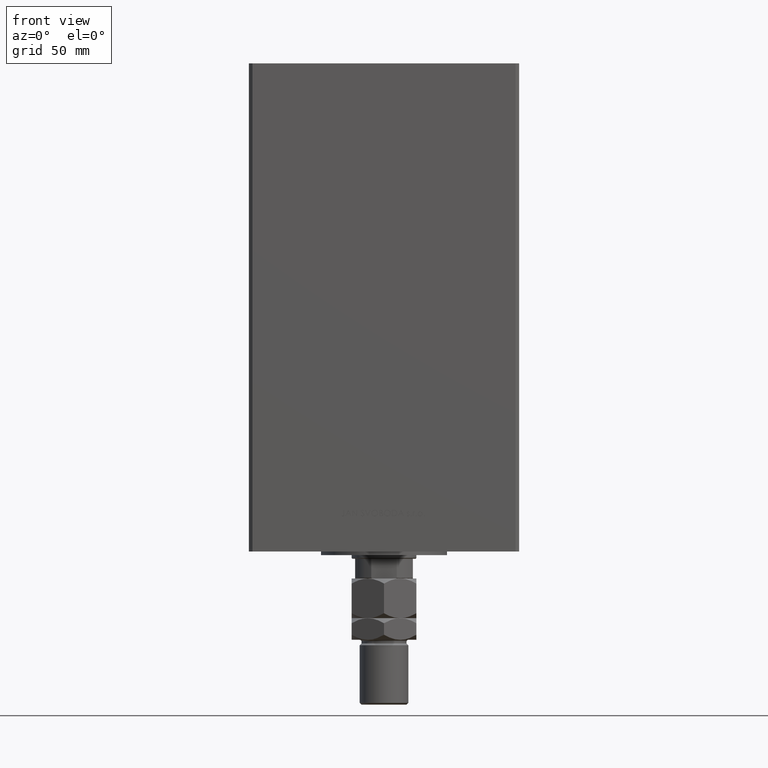
[diagram: clean part render]
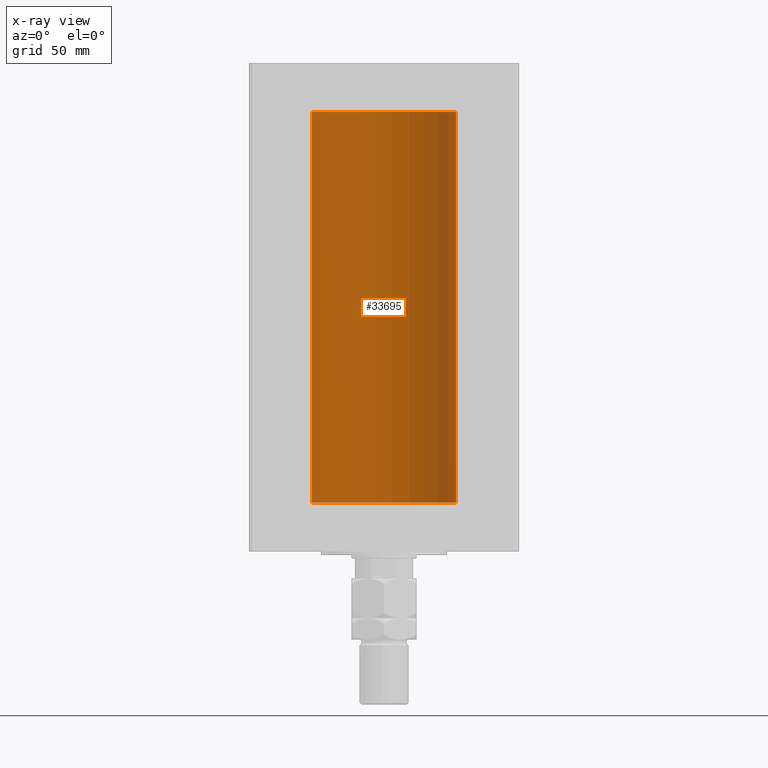
[diagram: x-ray — body ghosted, one internal face saturated and labeled with its STEP entity id]
A machine part, front view, then the same camera in x-ray: the body is ghosted and one INTERNAL B-rep face — a face not visible from any outside direction — is saturated and labeled: STEP entity #33695.
In plain terms, the highlighted cylindrical surface (partial cylindrical patch) has radius 40 mm, axis along (-0, -0, -1).
Its self-contained STEP definition (entity closure, byte-faithful):
#3568 = DIRECTION ( 'NONE',  ( 1.000000000000000000, 0.000000000000000000, 0.000000000000000000 ) ) ;
#4313 = LINE ( 'NONE', #19157, #17739 ) ;
#5011 = CYLINDRICAL_SURFACE ( 'NONE', #24054, 40.00000000000000000 ) ;
#8219 = DIRECTION ( 'NONE',  ( -0.000000000000000000, 0.000000000000000000, 1.000000000000000000 ) ) ;
#8848 = DIRECTION ( 'NONE',  ( -1.000000000000000000, 0.000000000000000000, 0.000000000000000000 ) ) ;
#9076 = CARTESIAN_POINT ( 'NONE',  ( -40.00000000000000000, 0.000000000000000000, 217.0000000000000000 ) ) ;
#11987 = ORIENTED_EDGE ( 'NONE', *, *, #44325, .T. ) ;
#12040 = EDGE_CURVE ( 'NONE', #14532, #21724, #40379, .T. ) ;
#14532 = VERTEX_POINT ( 'NONE', #32730 ) ;
#15245 = DIRECTION ( 'NONE',  ( -0.000000000000000000, -0.000000000000000000, -1.000000000000000000 ) ) ;
#15389 = DIRECTION ( 'NONE',  ( 1.000000000000000000, 0.000000000000000000, 0.000000000000000000 ) ) ;
#15589 = DIRECTION ( 'NONE',  ( -0.000000000000000000, 0.000000000000000000, 1.000000000000000000 ) ) ;
#17632 = ORIENTED_EDGE ( 'NONE', *, *, #31704, .T. ) ;
#17739 = VECTOR ( 'NONE', #34744, 1000.000000000000000 ) ;
#18556 = CIRCLE ( 'NONE', #25944, 40.00000000000000000 ) ;
#19157 = CARTESIAN_POINT ( 'NONE',  ( 40.00000000000000000, 4.898587196589413026E-15, 217.0000000000000000 ) ) ;
#21217 = CARTESIAN_POINT ( 'NONE',  ( -40.00000000000000000, 0.000000000000000000, 0.000000000000000000 ) ) ;
#21724 = VERTEX_POINT ( 'NONE', #21217 ) ;
#21933 = LINE ( 'NONE', #42376, #24778 ) ;
#22433 = AXIS2_PLACEMENT_3D ( 'NONE', #39385, #15589, #3568 ) ;
#24054 = AXIS2_PLACEMENT_3D ( 'NONE', #48745, #40831, #8848 ) ;
#24778 = VECTOR ( 'NONE', #15245, 1000.000000000000000 ) ;
#25944 = AXIS2_PLACEMENT_3D ( 'NONE', #41764, #8219, #15389 ) ;
#29948 = VERTEX_POINT ( 'NONE', #9076 ) ;
#31704 = EDGE_CURVE ( 'NONE', #29948, #21724, #21933, .T. ) ;
#32730 = CARTESIAN_POINT ( 'NONE',  ( 40.00000000000000000, 4.898587196589413026E-15, 0.000000000000000000 ) ) ;
#33126 = FACE_OUTER_BOUND ( 'NONE', #33766, .T. ) ;
#33695 = ADVANCED_FACE ( 'NONE', ( #33126 ), #5011, .F. ) ;
#33766 = EDGE_LOOP ( 'NONE', ( #42653, #11987, #17632, #43207 ) ) ;
#34744 = DIRECTION ( 'NONE',  ( -0.000000000000000000, -0.000000000000000000, -1.000000000000000000 ) ) ;
#36081 = VERTEX_POINT ( 'NONE', #43726 ) ;
#39385 = CARTESIAN_POINT ( 'NONE',  ( 0.000000000000000000, 0.000000000000000000, 0.000000000000000000 ) ) ;
#40299 = EDGE_CURVE ( 'NONE', #36081, #14532, #4313, .T. ) ;
#40379 = CIRCLE ( 'NONE', #22433, 40.00000000000000000 ) ;
#40831 = DIRECTION ( 'NONE',  ( -0.000000000000000000, -0.000000000000000000, -1.000000000000000000 ) ) ;
#41764 = CARTESIAN_POINT ( 'NONE',  ( 0.000000000000000000, 0.000000000000000000, 217.0000000000000000 ) ) ;
#42376 = CARTESIAN_POINT ( 'NONE',  ( -40.00000000000000000, 0.000000000000000000, 217.0000000000000000 ) ) ;
#42653 = ORIENTED_EDGE ( 'NONE', *, *, #40299, .F. ) ;
#43207 = ORIENTED_EDGE ( 'NONE', *, *, #12040, .F. ) ;
#43726 = CARTESIAN_POINT ( 'NONE',  ( 40.00000000000000000, 4.898587196589413026E-15, 217.0000000000000000 ) ) ;
#44325 = EDGE_CURVE ( 'NONE', #36081, #29948, #18556, .T. ) ;
#48745 = CARTESIAN_POINT ( 'NONE',  ( 0.000000000000000000, 0.000000000000000000, 217.0000000000000000 ) ) ;